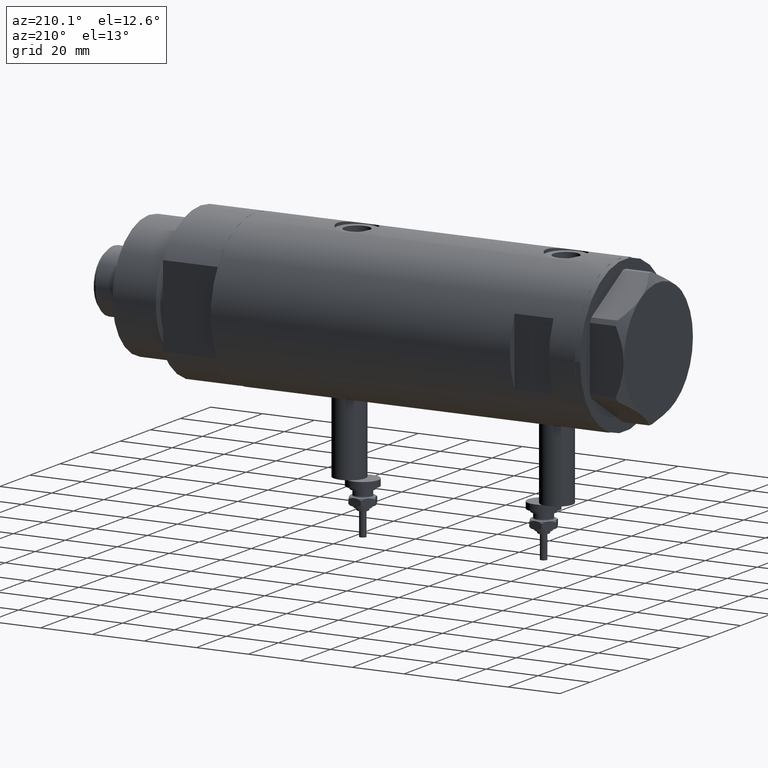
[diagram: clean part render]
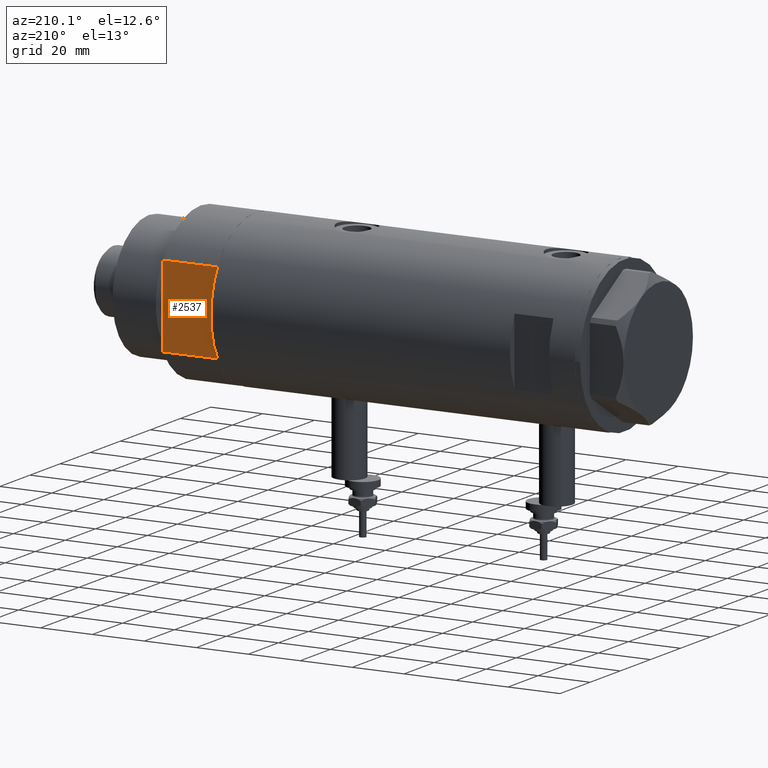
[diagram: same view with one face highlighted and labeled with its STEP entity id]
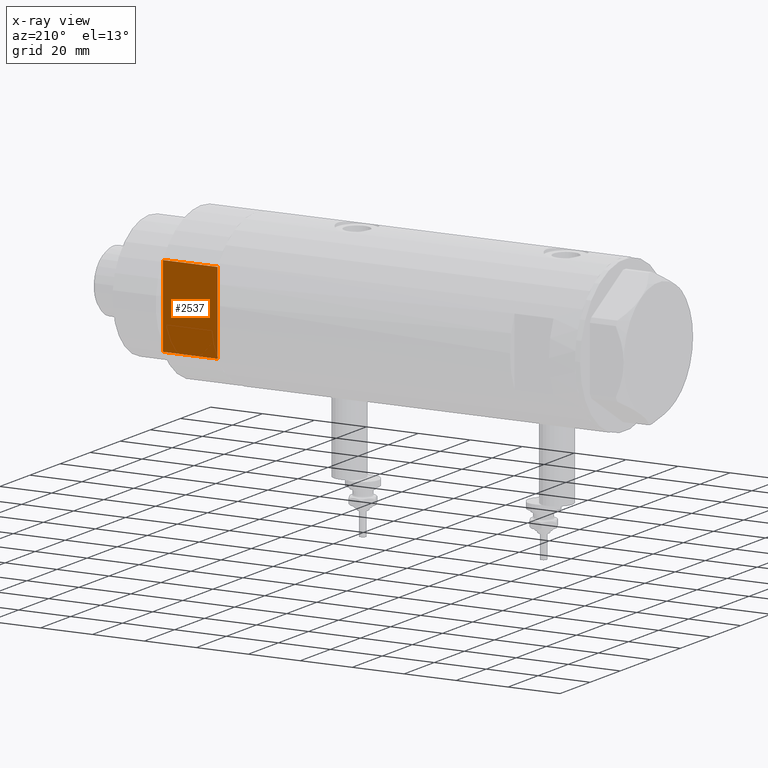
[diagram: x-ray of the same camera — body ghosted, the highlighted face saturated]
A machine part, auxiliary view. The second image highlights one B-rep face of the part: STEP entity #2537.
The next image is the same camera in x-ray: the body ghosted, the highlighted face saturated — about 0% of this face is hidden behind the body in this view.
In plain terms, the highlighted planar face has unit normal (0, -1, -0).
Its self-contained STEP definition (entity closure, byte-faithful):
#31 = CARTESIAN_POINT ( 'NONE',  ( -15.66045976336583401, 25.00000000000000000, 0.000000000000000000 ) ) ;
#99 = DIRECTION ( 'NONE',  ( 0.000000000000000000, -1.000000000000000000, 0.000000000000000000 ) ) ;
#207 = EDGE_CURVE ( 'NONE', #5011, #321, #4905, .T. ) ;
#321 = VERTEX_POINT ( 'NONE', #2563 ) ;
#421 = ORIENTED_EDGE ( 'NONE', *, *, #3429, .F. ) ;
#606 = DIRECTION ( 'NONE',  ( 1.000000000000000000, 0.000000000000000000, 0.000000000000000000 ) ) ;
#757 = AXIS2_PLACEMENT_3D ( 'NONE', #31, #99, #3715 ) ;
#857 = EDGE_LOOP ( 'NONE', ( #4949, #1994, #2118, #421, #4076, #4750 ) ) ;
#911 = CARTESIAN_POINT ( 'NONE',  ( -15.66045976336583401, 25.00000000000000000, 21.00000000000000000 ) ) ;
#1058 = EDGE_CURVE ( 'NONE', #321, #1213, #5095, .T. ) ;
#1080 = DIRECTION ( 'NONE',  ( 1.000000000000000000, 0.000000000000000000, 0.000000000000000000 ) ) ;
#1129 = DIRECTION ( 'NONE',  ( -0.000000000000000000, -0.000000000000000000, 1.000000000000000000 ) ) ;
#1142 = LINE ( 'NONE', #2040, #5429 ) ;
#1144 = VECTOR ( 'NONE', #1129, 1000.000000000000000 ) ;
#1152 = EDGE_CURVE ( 'NONE', #5011, #2687, #1815, .T. ) ;
#1213 = VERTEX_POINT ( 'NONE', #3237 ) ;
#1214 = VERTEX_POINT ( 'NONE', #5508 ) ;
#1392 = DIRECTION ( 'NONE',  ( 1.000000000000000000, 0.000000000000000000, 0.000000000000000000 ) ) ;
#1619 = VECTOR ( 'NONE', #1392, 1000.000000000000000 ) ;
#1762 = EDGE_CURVE ( 'NONE', #5324, #1213, #3789, .T. ) ;
#1815 = LINE ( 'NONE', #5456, #1619 ) ;
#1994 = ORIENTED_EDGE ( 'NONE', *, *, #1762, .F. ) ;
#2040 = CARTESIAN_POINT ( 'NONE',  ( -15.66045976336583401, 25.00000000000000000, 0.000000000000000000 ) ) ;
#2118 = ORIENTED_EDGE ( 'NONE', *, *, #5188, .F. ) ;
#2335 = CARTESIAN_POINT ( 'NONE',  ( 15.66045976336582690, 25.00000000000000000, 0.000000000000000000 ) ) ;
#2366 = VECTOR ( 'NONE', #606, 1000.000000000000000 ) ;
#2368 = CARTESIAN_POINT ( 'NONE',  ( -7.141428428542853091, 25.00000000000000000, 0.000000000000000000 ) ) ;
#2537 = ADVANCED_FACE ( 'NONE', ( #2773 ), #3332, .F. ) ;
#2563 = CARTESIAN_POINT ( 'NONE',  ( -15.66045976336583045, 24.99999999999999645, 21.00000000000000355 ) ) ;
#2687 = VERTEX_POINT ( 'NONE', #2368 ) ;
#2732 = VECTOR ( 'NONE', #3123, 1000.000000000000000 ) ;
#2746 = DIRECTION ( 'NONE',  ( 1.000000000000000000, 0.000000000000000000, 0.000000000000000000 ) ) ;
#2773 = FACE_OUTER_BOUND ( 'NONE', #857, .T. ) ;
#2883 = LINE ( 'NONE', #4687, #2366 ) ;
#3123 = DIRECTION ( 'NONE',  ( -0.000000000000000000, -0.000000000000000000, 1.000000000000000000 ) ) ;
#3206 = CARTESIAN_POINT ( 'NONE',  ( -15.66045976336583401, 25.00000000000000000, 0.000000000000000000 ) ) ;
#3237 = CARTESIAN_POINT ( 'NONE',  ( 15.66045976336583045, 24.99999999999999645, 20.99999999999999645 ) ) ;
#3332 = PLANE ( 'NONE',  #757 ) ;
#3429 = EDGE_CURVE ( 'NONE', #2687, #1214, #2883, .T. ) ;
#3715 = DIRECTION ( 'NONE',  ( 0.000000000000000000, -0.000000000000000000, -1.000000000000000000 ) ) ;
#3789 = LINE ( 'NONE', #3878, #1144 ) ;
#3878 = CARTESIAN_POINT ( 'NONE',  ( 15.66045976336583401, 25.00000000000000000, 0.000000000000000000 ) ) ;
#4076 = ORIENTED_EDGE ( 'NONE', *, *, #1152, .F. ) ;
#4172 = VECTOR ( 'NONE', #2746, 1000.000000000000000 ) ;
#4381 = CARTESIAN_POINT ( 'NONE',  ( -15.66045976336583401, 25.00000000000000000, 0.000000000000000000 ) ) ;
#4687 = CARTESIAN_POINT ( 'NONE',  ( -15.66045976336583401, 25.00000000000000000, 0.000000000000000000 ) ) ;
#4750 = ORIENTED_EDGE ( 'NONE', *, *, #207, .T. ) ;
#4905 = LINE ( 'NONE', #4381, #2732 ) ;
#4949 = ORIENTED_EDGE ( 'NONE', *, *, #1058, .T. ) ;
#5011 = VERTEX_POINT ( 'NONE', #3206 ) ;
#5095 = LINE ( 'NONE', #911, #4172 ) ;
#5188 = EDGE_CURVE ( 'NONE', #1214, #5324, #1142, .T. ) ;
#5324 = VERTEX_POINT ( 'NONE', #2335 ) ;
#5429 = VECTOR ( 'NONE', #1080, 1000.000000000000000 ) ;
#5456 = CARTESIAN_POINT ( 'NONE',  ( -15.66045976336583401, 25.00000000000000000, 0.000000000000000000 ) ) ;
#5508 = CARTESIAN_POINT ( 'NONE',  ( 7.141428428542853091, 25.00000000000000000, 0.000000000000000000 ) ) ;